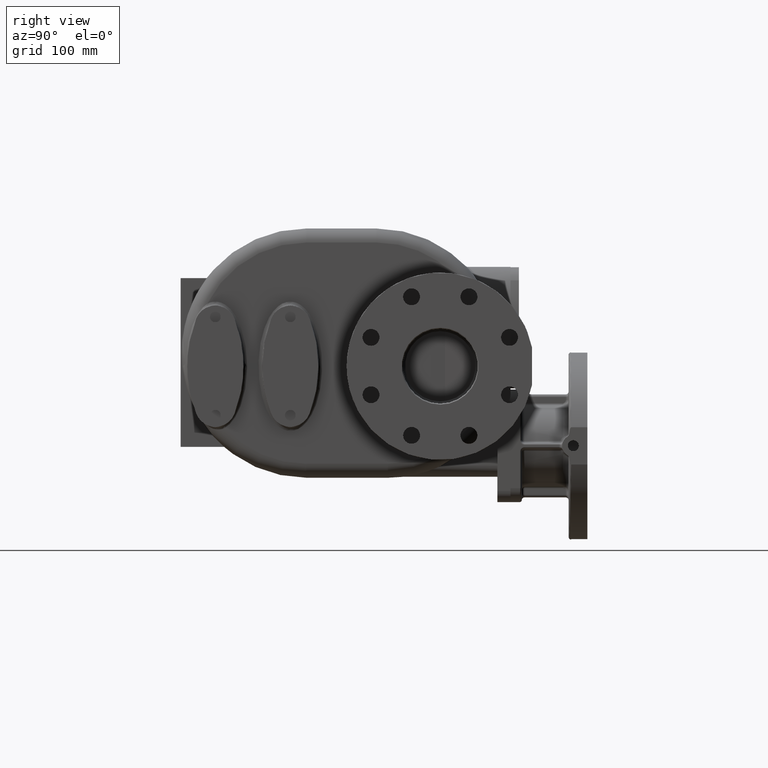
[diagram: clean part render]
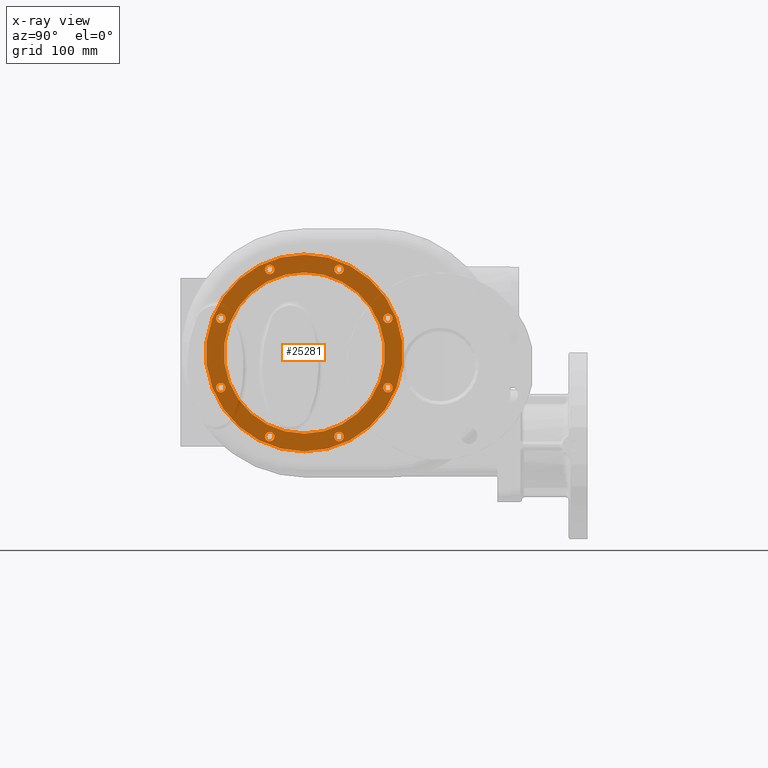
[diagram: x-ray — body ghosted, one internal face saturated and labeled with its STEP entity id]
A machine part, right view, then the same camera in x-ray: the body is ghosted and one INTERNAL B-rep face — a face not visible from any outside direction — is saturated and labeled: STEP entity #25281.
In plain terms, the highlighted planar face has unit normal (-1, 0, 0).
Its self-contained STEP definition (entity closure, byte-faithful):
#6729=CARTESIAN_POINT('',(-7.05E1,1.32E2,0.E0));
#6730=DIRECTION('',(-1.E0,0.E0,0.E0));
#6731=DIRECTION('',(0.E0,0.E0,-1.E0));
#6732=AXIS2_PLACEMENT_3D('',#6729,#6730,#6731);
#6738=CARTESIAN_POINT('',(-7.05E1,1.32E2,0.E0));
#6739=DIRECTION('',(1.E0,0.E0,0.E0));
#6740=DIRECTION('',(0.E0,0.E0,-1.E0));
#6741=AXIS2_PLACEMENT_3D('',#6738,#6739,#6740);
#6747=CARTESIAN_POINT('',(-7.05E1,9.507104877677E1,-8.915437488734E1));
#6748=DIRECTION('',(-1.E0,0.E0,0.E0));
#6749=DIRECTION('',(0.E0,-1.E0,0.E0));
#6750=AXIS2_PLACEMENT_3D('',#6747,#6748,#6749);
#6752=CARTESIAN_POINT('',(-7.05E1,9.507104877677E1,-8.915437488734E1));
#6753=DIRECTION('',(-1.E0,0.E0,0.E0));
#6754=DIRECTION('',(0.E0,1.E0,0.E0));
#6755=AXIS2_PLACEMENT_3D('',#6752,#6753,#6754);
#6757=CARTESIAN_POINT('',(-7.05E1,4.284562511266E1,-3.692895122323E1));
#6758=DIRECTION('',(-1.E0,0.E0,0.E0));
#6759=DIRECTION('',(0.E0,-7.071067811865E-1,7.071067811866E-1));
#6760=AXIS2_PLACEMENT_3D('',#6757,#6758,#6759);
#6762=CARTESIAN_POINT('',(-7.05E1,4.284562511266E1,-3.692895122323E1));
#6763=DIRECTION('',(-1.E0,0.E0,0.E0));
#6764=DIRECTION('',(0.E0,7.071067811866E-1,-7.071067811865E-1));
#6765=AXIS2_PLACEMENT_3D('',#6762,#6763,#6764);
#6767=CARTESIAN_POINT('',(-7.05E1,4.284562511266E1,3.692895122323E1));
#6768=DIRECTION('',(-1.E0,0.E0,0.E0));
#6769=DIRECTION('',(0.E0,0.E0,1.E0));
#6770=AXIS2_PLACEMENT_3D('',#6767,#6768,#6769);
#6772=CARTESIAN_POINT('',(-7.05E1,4.284562511266E1,3.692895122323E1));
#6773=DIRECTION('',(-1.E0,0.E0,0.E0));
#6774=DIRECTION('',(0.E0,0.E0,-1.E0));
#6775=AXIS2_PLACEMENT_3D('',#6772,#6773,#6774);
#6777=CARTESIAN_POINT('',(-7.05E1,9.507104877677E1,8.915437488734E1));
#6778=DIRECTION('',(-1.E0,0.E0,0.E0));
#6779=DIRECTION('',(0.E0,7.071067811865E-1,7.071067811865E-1));
#6780=AXIS2_PLACEMENT_3D('',#6777,#6778,#6779);
#6782=CARTESIAN_POINT('',(-7.05E1,9.507104877677E1,8.915437488734E1));
#6783=DIRECTION('',(-1.E0,0.E0,0.E0));
#6784=DIRECTION('',(0.E0,-7.071067811865E-1,-7.071067811865E-1));
#6785=AXIS2_PLACEMENT_3D('',#6782,#6783,#6784);
#6787=CARTESIAN_POINT('',(-7.05E1,1.689289512232E2,8.915437488734E1));
#6788=DIRECTION('',(-1.E0,0.E0,0.E0));
#6789=DIRECTION('',(0.E0,1.E0,0.E0));
#6790=AXIS2_PLACEMENT_3D('',#6787,#6788,#6789);
#6792=CARTESIAN_POINT('',(-7.05E1,1.689289512232E2,8.915437488734E1));
#6793=DIRECTION('',(-1.E0,0.E0,0.E0));
#6794=DIRECTION('',(0.E0,-1.E0,0.E0));
#6795=AXIS2_PLACEMENT_3D('',#6792,#6793,#6794);
#6797=CARTESIAN_POINT('',(-7.05E1,2.211543748873E2,3.692895122323E1));
#6798=DIRECTION('',(-1.E0,0.E0,0.E0));
#6799=DIRECTION('',(0.E0,7.071067811865E-1,-7.071067811865E-1));
#6800=AXIS2_PLACEMENT_3D('',#6797,#6798,#6799);
#6802=CARTESIAN_POINT('',(-7.05E1,2.211543748873E2,3.692895122323E1));
#6803=DIRECTION('',(-1.E0,0.E0,0.E0));
#6804=DIRECTION('',(0.E0,-7.071067811865E-1,7.071067811865E-1));
#6805=AXIS2_PLACEMENT_3D('',#6802,#6803,#6804);
#6807=CARTESIAN_POINT('',(-7.05E1,2.211543748873E2,-3.692895122323E1));
#6808=DIRECTION('',(-1.E0,0.E0,0.E0));
#6809=DIRECTION('',(0.E0,0.E0,-1.E0));
#6810=AXIS2_PLACEMENT_3D('',#6807,#6808,#6809);
#6812=CARTESIAN_POINT('',(-7.05E1,2.211543748873E2,-3.692895122323E1));
#6813=DIRECTION('',(-1.E0,0.E0,0.E0));
#6814=DIRECTION('',(0.E0,1.136868377216E-14,1.E0));
#6815=AXIS2_PLACEMENT_3D('',#6812,#6813,#6814);
#6817=CARTESIAN_POINT('',(-7.05E1,1.689289512232E2,-8.915437488734E1));
#6818=DIRECTION('',(-1.E0,0.E0,0.E0));
#6819=DIRECTION('',(0.E0,-7.071067811865E-1,-7.071067811866E-1));
#6820=AXIS2_PLACEMENT_3D('',#6817,#6818,#6819);
#6822=CARTESIAN_POINT('',(-7.05E1,1.689289512232E2,-8.915437488734E1));
#6823=DIRECTION('',(-1.E0,0.E0,0.E0));
#6824=DIRECTION('',(0.E0,7.071067811866E-1,7.071067811865E-1));
#6825=AXIS2_PLACEMENT_3D('',#6822,#6823,#6824);
#6827=CARTESIAN_POINT('',(-7.05E1,1.32E2,0.E0));
#6828=DIRECTION('',(1.E0,0.E0,0.E0));
#6829=DIRECTION('',(0.E0,0.E0,-1.E0));
#6830=AXIS2_PLACEMENT_3D('',#6827,#6828,#6829);
#6858=CARTESIAN_POINT('',(-7.05E1,1.32E2,0.E0));
#6859=DIRECTION('',(-1.E0,0.E0,0.E0));
#6860=DIRECTION('',(0.E0,0.E0,-1.E0));
#6861=AXIS2_PLACEMENT_3D('',#6858,#6859,#6860);
#13852=CARTESIAN_POINT('',(-7.05E1,1.32E2,-8.6E1));
#13853=CARTESIAN_POINT('',(-7.05E1,1.32E2,8.6E1));
#13854=VERTEX_POINT('',#13852);
#13855=VERTEX_POINT('',#13853);
#13904=CARTESIAN_POINT('',(-7.05E1,1.32E2,-1.05E2));
#13905=CARTESIAN_POINT('',(-7.05E1,1.32E2,1.05E2));
#13906=VERTEX_POINT('',#13904);
#13907=VERTEX_POINT('',#13905);
#13920=CARTESIAN_POINT('',(-7.05E1,9.007104877677E1,-8.915437488734E1));
#13922=VERTEX_POINT('',#13920);
#13924=CARTESIAN_POINT('',(-7.05E1,1.000710487768E2,-8.915437488734E1));
#13926=VERTEX_POINT('',#13924);
#13928=CARTESIAN_POINT('',(-7.05E1,3.931009120673E1,-3.339341731730E1));
#13930=VERTEX_POINT('',#13928);
#13932=CARTESIAN_POINT('',(-7.05E1,4.638115901859E1,-4.046448512916E1));
#13934=VERTEX_POINT('',#13932);
#13936=CARTESIAN_POINT('',(-7.05E1,4.284562511266E1,4.192895122323E1));
#13938=VERTEX_POINT('',#13936);
#13940=CARTESIAN_POINT('',(-7.05E1,4.284562511266E1,3.192895122323E1));
#13942=VERTEX_POINT('',#13940);
#13944=CARTESIAN_POINT('',(-7.05E1,9.860658268270E1,9.268990879327E1));
#13946=VERTEX_POINT('',#13944);
#13948=CARTESIAN_POINT('',(-7.05E1,9.153551487084E1,8.561884098141E1));
#13950=VERTEX_POINT('',#13948);
#13952=CARTESIAN_POINT('',(-7.05E1,1.739289512232E2,8.915437488734E1));
#13954=VERTEX_POINT('',#13952);
#13956=CARTESIAN_POINT('',(-7.05E1,1.639289512232E2,8.915437488734E1));
#13958=VERTEX_POINT('',#13956);
#13960=CARTESIAN_POINT('',(-7.05E1,2.246899087933E2,3.339341731730E1));
#13962=VERTEX_POINT('',#13960);
#13964=CARTESIAN_POINT('',(-7.05E1,2.176188409814E2,4.046448512916E1));
#13966=VERTEX_POINT('',#13964);
#13968=CARTESIAN_POINT('',(-7.05E1,2.211543748873E2,-4.192895122323E1));
#13970=VERTEX_POINT('',#13968);
#13972=CARTESIAN_POINT('',(-7.05E1,2.211543748873E2,-3.192895122323E1));
#13974=VERTEX_POINT('',#13972);
#13976=CARTESIAN_POINT('',(-7.05E1,1.653934173173E2,-9.268990879327E1));
#13978=VERTEX_POINT('',#13976);
#13980=CARTESIAN_POINT('',(-7.05E1,1.724644851292E2,-8.561884098141E1));
#13982=VERTEX_POINT('',#13980);
#25218=CARTESIAN_POINT('',(-7.05E1,1.32E2,0.E0));
#25219=DIRECTION('',(-1.E0,0.E0,0.E0));
#25220=DIRECTION('',(0.E0,0.E0,-1.E0));
#25221=AXIS2_PLACEMENT_3D('',#25218,#25219,#25220);
#25222=PLANE('',#25221);
#25224=ORIENTED_EDGE('',*,*,#25223,.F.);
#25226=ORIENTED_EDGE('',*,*,#25225,.T.);
#25227=EDGE_LOOP('',(#25224,#25226));
#25228=FACE_OUTER_BOUND('',#25227,.F.);
#25229=ORIENTED_EDGE('',*,*,#25212,.T.);
#25230=ORIENTED_EDGE('',*,*,#25198,.F.);
#25231=EDGE_LOOP('',(#25229,#25230));
#25232=FACE_BOUND('',#25231,.F.);
#25234=ORIENTED_EDGE('',*,*,#25233,.F.);
#25236=ORIENTED_EDGE('',*,*,#25235,.F.);
#25237=EDGE_LOOP('',(#25234,#25236));
#25238=FACE_BOUND('',#25237,.F.);
#25240=ORIENTED_EDGE('',*,*,#25239,.F.);
#25242=ORIENTED_EDGE('',*,*,#25241,.F.);
#25243=EDGE_LOOP('',(#25240,#25242));
#25244=FACE_BOUND('',#25243,.F.);
#25246=ORIENTED_EDGE('',*,*,#25245,.F.);
#25248=ORIENTED_EDGE('',*,*,#25247,.F.);
#25249=EDGE_LOOP('',(#25246,#25248));
#25250=FACE_BOUND('',#25249,.F.);
#25252=ORIENTED_EDGE('',*,*,#25251,.F.);
#25254=ORIENTED_EDGE('',*,*,#25253,.F.);
#25255=EDGE_LOOP('',(#25252,#25254));
#25256=FACE_BOUND('',#25255,.F.);
#25258=ORIENTED_EDGE('',*,*,#25257,.F.);
#25260=ORIENTED_EDGE('',*,*,#25259,.F.);
#25261=EDGE_LOOP('',(#25258,#25260));
#25262=FACE_BOUND('',#25261,.F.);
#25264=ORIENTED_EDGE('',*,*,#25263,.F.);
#25266=ORIENTED_EDGE('',*,*,#25265,.F.);
#25267=EDGE_LOOP('',(#25264,#25266));
#25268=FACE_BOUND('',#25267,.F.);
#25270=ORIENTED_EDGE('',*,*,#25269,.F.);
#25272=ORIENTED_EDGE('',*,*,#25271,.F.);
#25273=EDGE_LOOP('',(#25270,#25272));
#25274=FACE_BOUND('',#25273,.F.);
#25276=ORIENTED_EDGE('',*,*,#25275,.F.);
#25278=ORIENTED_EDGE('',*,*,#25277,.F.);
#25279=EDGE_LOOP('',(#25276,#25278));
#25280=FACE_BOUND('',#25279,.F.);
#25281=ADVANCED_FACE('',(#25228,#25232,#25238,#25244,#25250,#25256,#25262,
#25268,#25274,#25280),#25222,.F.);
#6733=CIRCLE('',#6732,8.6E1);
#6742=CIRCLE('',#6741,8.6E1);
#6751=CIRCLE('',#6750,5.E0);
#6756=CIRCLE('',#6755,5.E0);
#6761=CIRCLE('',#6760,5.E0);
#6766=CIRCLE('',#6765,5.E0);
#6771=CIRCLE('',#6770,5.E0);
#6776=CIRCLE('',#6775,5.E0);
#6781=CIRCLE('',#6780,5.E0);
#6786=CIRCLE('',#6785,5.E0);
#6791=CIRCLE('',#6790,5.E0);
#6796=CIRCLE('',#6795,5.E0);
#6801=CIRCLE('',#6800,5.E0);
#6806=CIRCLE('',#6805,5.E0);
#6811=CIRCLE('',#6810,5.E0);
#6816=CIRCLE('',#6815,5.E0);
#6821=CIRCLE('',#6820,5.E0);
#6826=CIRCLE('',#6825,5.E0);
#6831=CIRCLE('',#6830,1.05E2);
#6862=CIRCLE('',#6861,1.05E2);
#25198=EDGE_CURVE('',#13854,#13855,#6733,.T.);
#25212=EDGE_CURVE('',#13854,#13855,#6742,.T.);
#25223=EDGE_CURVE('',#13906,#13907,#6831,.T.);
#25225=EDGE_CURVE('',#13906,#13907,#6862,.T.);
#25233=EDGE_CURVE('',#13922,#13926,#6751,.T.);
#25235=EDGE_CURVE('',#13926,#13922,#6756,.T.);
#25239=EDGE_CURVE('',#13930,#13934,#6761,.T.);
#25241=EDGE_CURVE('',#13934,#13930,#6766,.T.);
#25245=EDGE_CURVE('',#13938,#13942,#6771,.T.);
#25247=EDGE_CURVE('',#13942,#13938,#6776,.T.);
#25251=EDGE_CURVE('',#13946,#13950,#6781,.T.);
#25253=EDGE_CURVE('',#13950,#13946,#6786,.T.);
#25257=EDGE_CURVE('',#13954,#13958,#6791,.T.);
#25259=EDGE_CURVE('',#13958,#13954,#6796,.T.);
#25263=EDGE_CURVE('',#13962,#13966,#6801,.T.);
#25265=EDGE_CURVE('',#13966,#13962,#6806,.T.);
#25269=EDGE_CURVE('',#13970,#13974,#6811,.T.);
#25271=EDGE_CURVE('',#13974,#13970,#6816,.T.);
#25275=EDGE_CURVE('',#13978,#13982,#6821,.T.);
#25277=EDGE_CURVE('',#13982,#13978,#6826,.T.);